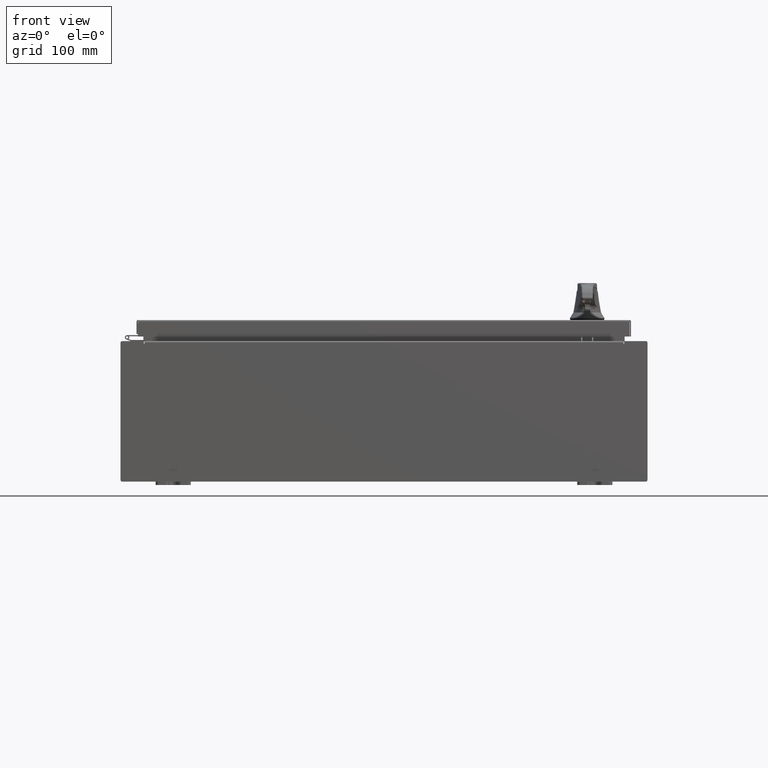
[diagram: clean part render]
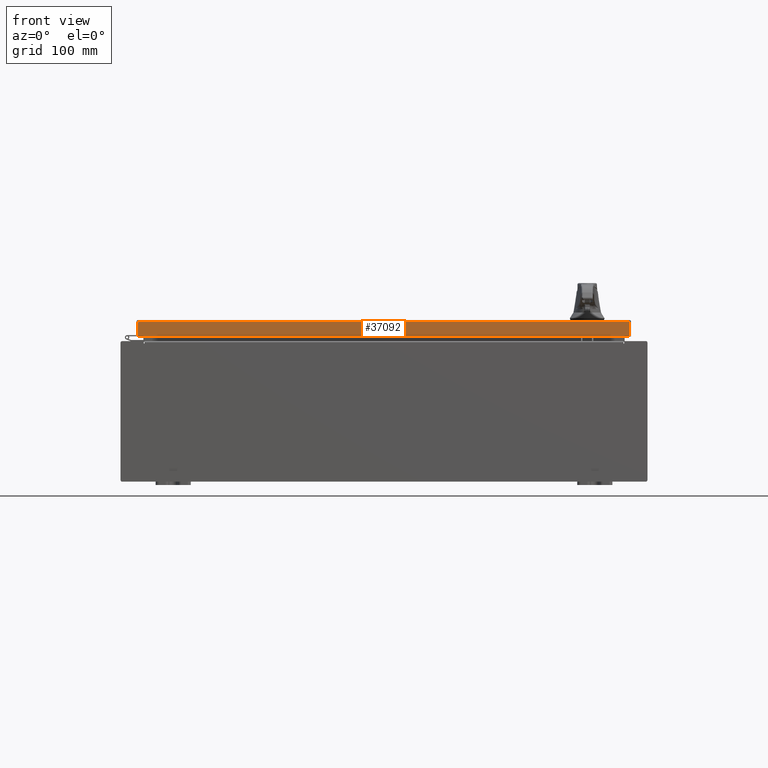
[diagram: same view with one face highlighted and labeled with its STEP entity id]
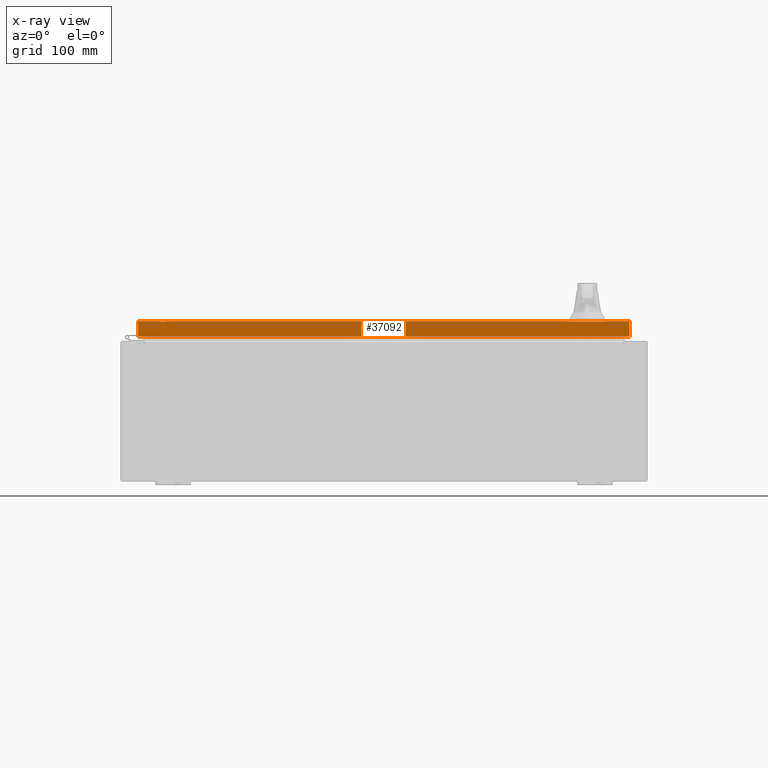
[diagram: x-ray of the same camera — body ghosted, the highlighted face saturated]
A machine part, front view. The second image highlights one B-rep face of the part: STEP entity #37092.
The next image is the same camera in x-ray: the body ghosted, the highlighted face saturated — about 0% of this face is hidden behind the body in this view.
In plain terms, the highlighted planar face has unit normal (-0, 1, -0).
Its self-contained STEP definition (entity closure, byte-faithful):
#1437 = CARTESIAN_POINT ( 'NONE',  ( -13.98915786437626700, -11.09400000000000100, 5.645014694307779800E-014 ) ) ;
#5325 = EDGE_CURVE ( 'NONE', #62955, #83865, #6725, .T. ) ;
#6725 = LINE ( 'NONE', #90330, #97160 ) ;
#7246 = LINE ( 'NONE', #1437, #97663 ) ;
#7398 = FACE_OUTER_BOUND ( 'NONE', #62299, .T. ) ;
#16292 = DIRECTION ( 'NONE',  ( -7.762034361881761300E-017, 1.000000000000000000, -5.064839849203732200E-015 ) ) ;
#21493 = CARTESIAN_POINT ( 'NONE',  ( 14.07800000000000300, -11.09400000000000100, -0.08769999999999987500 ) ) ;
#25105 = CARTESIAN_POINT ( 'NONE',  ( 8.611200921071627100E-016, -11.09400000000000100, 5.645014694307779200E-014 ) ) ;
#27990 = CARTESIAN_POINT ( 'NONE',  ( 13.98915786437624000, -11.09400000000000100, -0.08770000000000097200 ) ) ;
#29921 = EDGE_CURVE ( 'NONE', #83865, #89080, #100214, .T. ) ;
#35231 = VECTOR ( 'NONE', #56756, 39.37007874015748100 ) ;
#36739 = CARTESIAN_POINT ( 'NONE',  ( 14.07800000000000300, -11.09400000000000700, -0.9376999999999997600 ) ) ;
#37092 = ADVANCED_FACE ( 'NONE', ( #7398 ), #95239, .F. ) ;
#38118 = ORIENTED_EDGE ( 'NONE', *, *, #5325, .F. ) ;
#45555 = DIRECTION ( 'NONE',  ( -1.000000000000000000, -7.762034361881697200E-017, 1.261330583805775800E-016 ) ) ;
#53869 = DIRECTION ( 'NONE',  ( 0.0000000000000000000, -5.064839849203732200E-015, -1.000000000000000000 ) ) ;
#55817 = LINE ( 'NONE', #21493, #35231 ) ;
#56756 = DIRECTION ( 'NONE',  ( 1.000000000000000000, 7.762034361881800700E-017, 7.762034361881697200E-017 ) ) ;
#61274 = ORIENTED_EDGE ( 'NONE', *, *, #109896, .F. ) ;
#62299 = EDGE_LOOP ( 'NONE', ( #61274, #89904, #63198, #38118 ) ) ;
#62955 = VERTEX_POINT ( 'NONE', #27990 ) ;
#63198 = ORIENTED_EDGE ( 'NONE', *, *, #29921, .F. ) ;
#64582 = EDGE_CURVE ( 'NONE', #110067, #89080, #7246, .T. ) ;
#75415 = AXIS2_PLACEMENT_3D ( 'NONE', #25105, #16292, #104047 ) ;
#76897 = VECTOR ( 'NONE', #45555, 39.37007874015748100 ) ;
#80621 = CARTESIAN_POINT ( 'NONE',  ( 13.98915786437627100, -11.09400000000000700, -0.9376999999999997600 ) ) ;
#81125 = DIRECTION ( 'NONE',  ( -0.0000000000000000000, -5.064839849203732200E-015, -1.000000000000000000 ) ) ;
#81846 = CARTESIAN_POINT ( 'NONE',  ( -13.98915786437626900, -11.09400000000000700, -0.9376999999999962000 ) ) ;
#83865 = VERTEX_POINT ( 'NONE', #80621 ) ;
#89080 = VERTEX_POINT ( 'NONE', #81846 ) ;
#89904 = ORIENTED_EDGE ( 'NONE', *, *, #64582, .T. ) ;
#90330 = CARTESIAN_POINT ( 'NONE',  ( 13.98915786437627100, -11.09400000000000100, -0.07469999999999962800 ) ) ;
#95239 = PLANE ( 'NONE',  #75415 ) ;
#95768 = CARTESIAN_POINT ( 'NONE',  ( -13.98915786437626900, -11.09400000000000100, -0.08770000000000206800 ) ) ;
#97160 = VECTOR ( 'NONE', #81125, 39.37007874015748100 ) ;
#97663 = VECTOR ( 'NONE', #53869, 39.37007874015748100 ) ;
#100214 = LINE ( 'NONE', #36739, #76897 ) ;
#104047 = DIRECTION ( 'NONE',  ( 0.0000000000000000000, 5.064839849203732200E-015, 1.000000000000000000 ) ) ;
#109896 = EDGE_CURVE ( 'NONE', #110067, #62955, #55817, .T. ) ;
#110067 = VERTEX_POINT ( 'NONE', #95768 ) ;